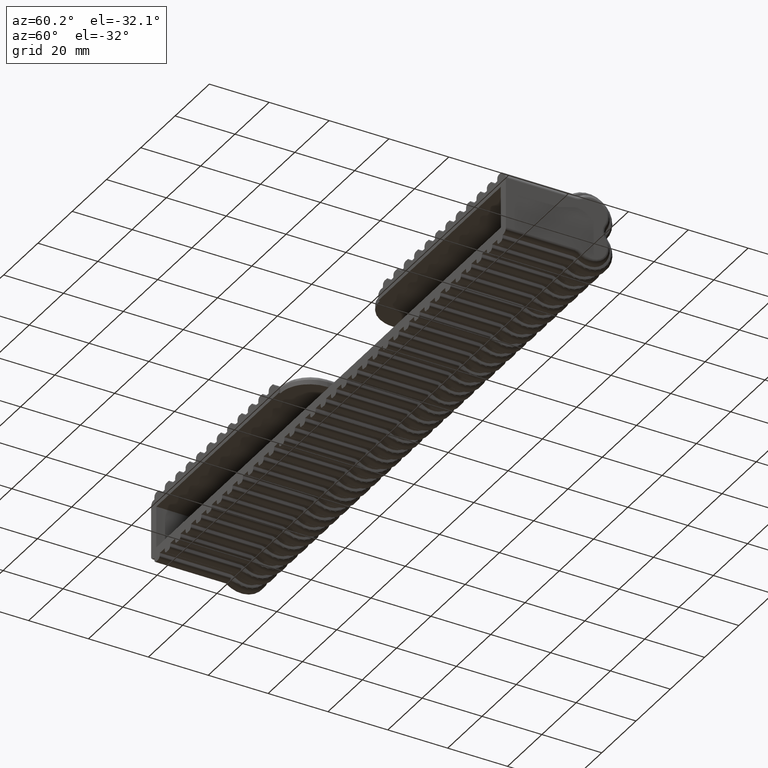
[diagram: clean part render]
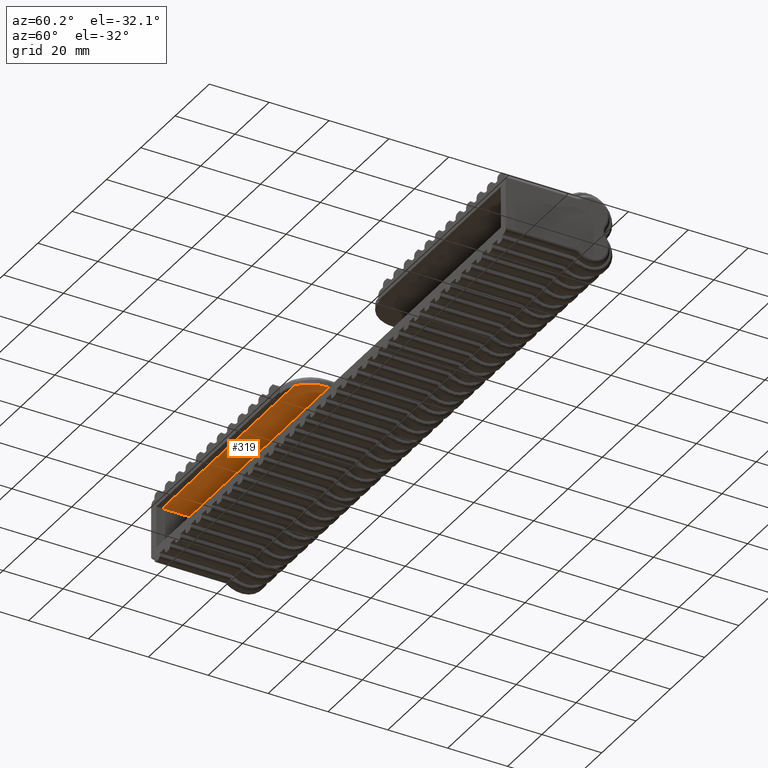
[diagram: same view with one face highlighted and labeled with its STEP entity id]
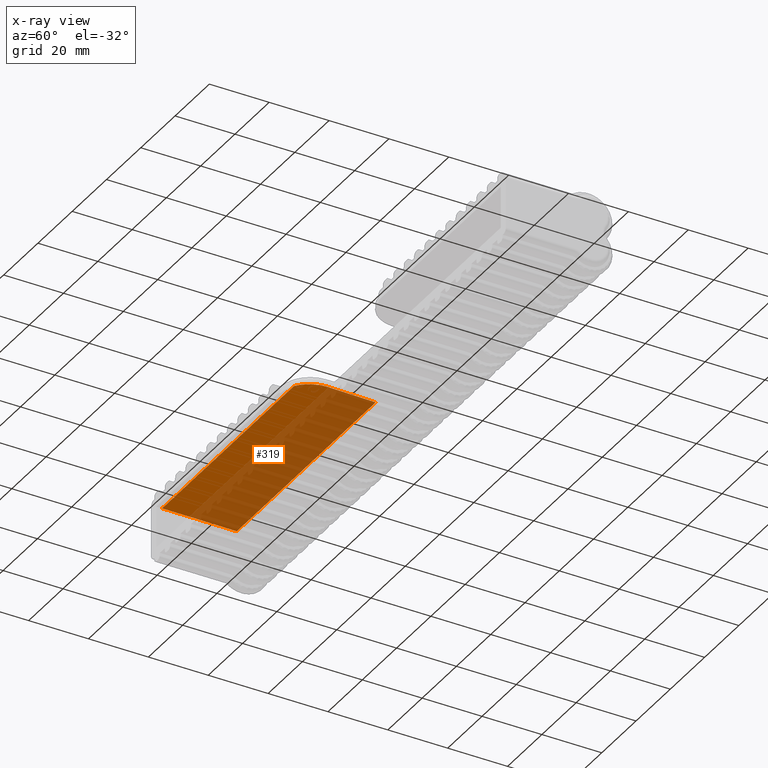
[diagram: x-ray of the same camera — body ghosted, the highlighted face saturated]
A machine part, auxiliary view. The second image highlights one B-rep face of the part: STEP entity #319.
The next image is the same camera in x-ray: the body ghosted, the highlighted face saturated — about 64% of this face is hidden behind the body in this view.
In plain terms, the highlighted planar face has unit normal (0, -0.0175, -0.9998).
Its self-contained STEP definition (entity closure, byte-faithful):
#319 = ADVANCED_FACE( '', ( #1427 ), #1428, .T. );
#1427 = FACE_OUTER_BOUND( '', #3643, .T. );
#1428 = PLANE( '', #3644 );
#3643 = EDGE_LOOP( '', ( #6259, #6260, #6261, #6262, #6263 ) );
#3644 = AXIS2_PLACEMENT_3D( '', #6264, #6265, #6266 );
#6259 = ORIENTED_EDGE( '', *, *, #15609, .F. );
#6260 = ORIENTED_EDGE( '', *, *, #15610, .F. );
#6261 = ORIENTED_EDGE( '', *, *, #15611, .T. );
#6262 = ORIENTED_EDGE( '', *, *, #15612, .T. );
#6263 = ORIENTED_EDGE( '', *, *, #15604, .T. );
#6264 = CARTESIAN_POINT( '', ( 100.000000000000, 30.0000000000000, 6.50000000000002 ) );
#6265 = DIRECTION( '', ( 1.22441984034318E-016, -0.0174524064372837, -0.999847695156391 ) );
#6266 = DIRECTION( '', ( -2.13723278125879E-018, -0.999847695156391, 0.0174524064372837 ) );
#15604 = EDGE_CURVE( '', #18973, #18971, #18974, .F. );
#15609 = EDGE_CURVE( '', #18980, #18971, #18982, .F. );
#15610 = EDGE_CURVE( '', #18983, #18980, #18984, .F. );
#15611 = EDGE_CURVE( '', #18983, #18985, #18986, .T. );
#15612 = EDGE_CURVE( '', #18985, #18973, #18987, .F. );
#18971 = VERTEX_POINT( '', #24142 );
#18973 = VERTEX_POINT( '', #24145 );
#18974 = LINE( '', #24146, #24147 );
#18980 = VERTEX_POINT( '', #24154 );
#18982 = ELLIPSE( '', #24156, 10.0015232804391, 9.99999999999999 );
#18983 = VERTEX_POINT( '', #24157 );
#18984 = LINE( '', #24158, #24159 );
#18985 = VERTEX_POINT( '', #24160 );
#18986 = LINE( '', #24161, #24162 );
#18987 = LINE( '', #24163, #24164 );
#24142 = CARTESIAN_POINT( '', ( -19.0000000000000, 10.5000000000000, 6.84037060638839 ) );
#24145 = CARTESIAN_POINT( '', ( -19.0000000000000, 26.6390950285663, 6.55866481449395 ) );
#24146 = CARTESIAN_POINT( '', ( -19.0000000000000, -121.150147680068, 9.13833564166530 ) );
#24147 = VECTOR( '', #35848, 1000.00000000000 );
#24154 = CARTESIAN_POINT( '', ( -23.7321731235736, 2.00000000000000, 6.98874181799009 ) );
#24156 = AXIS2_PLACEMENT_3D( '', #35859, #35860, #35861 );
#24157 = CARTESIAN_POINT( '', ( -100.488741817990, 2.00000000000000, 6.98874181799008 ) );
#24158 = CARTESIAN_POINT( '', ( 100.000000000000, 2.00000000000000, 6.98874181799011 ) );
#24159 = VECTOR( '', #35862, 1000.00000000000 );
#24160 = CARTESIAN_POINT( '', ( -100.058664814494, 26.6390950285663, 6.55866481449393 ) );
#24161 = CARTESIAN_POINT( '', ( -99.9960415813050, 30.2267776551562, 6.49604158130497 ) );
#24162 = VECTOR( '', #35863, 1000.00000000000 );
#24163 = CARTESIAN_POINT( '', ( 101.000000000000, 26.6390950285663, 6.55866481449396 ) );
#24164 = VECTOR( '', #35864, 1000.00000000000 );
#35848 = DIRECTION( '', ( 2.13723278125879E-018, 0.999847695156391, -0.0174524064372837 ) );
#35859 = CARTESIAN_POINT( '', ( -29.0000000000000, 10.5000000000000, 6.84037376610024 ) );
#35860 = DIRECTION( '', ( 1.22441984034318E-016, -0.0174524064372837, -0.999847695156391 ) );
#35861 = DIRECTION( '', ( 2.13723278125879E-018, 0.999847695156391, -0.0174524064372837 ) );
#35862 = DIRECTION( '', ( -1.00000000000000, -2.24949108273321E-032, -1.22460635382238E-016 ) );
#35863 = DIRECTION( '', ( 0.0174497491606827, 0.999695459881887, -0.0174497491606829 ) );
#35864 = DIRECTION( '', ( -1.00000000000000, -3.31166777813623E-032, -1.80284751248131E-016 ) );